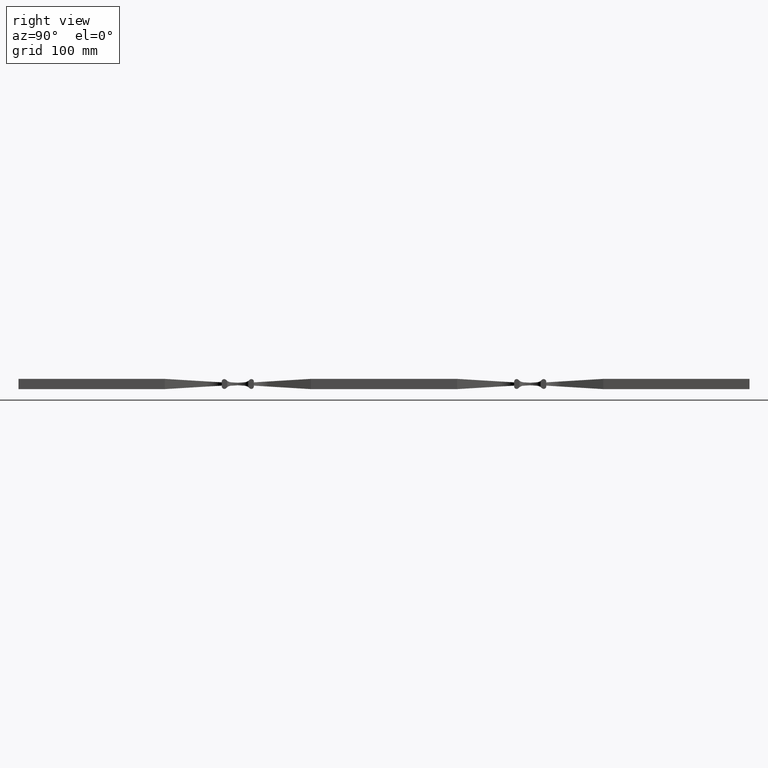
[diagram: clean part render]
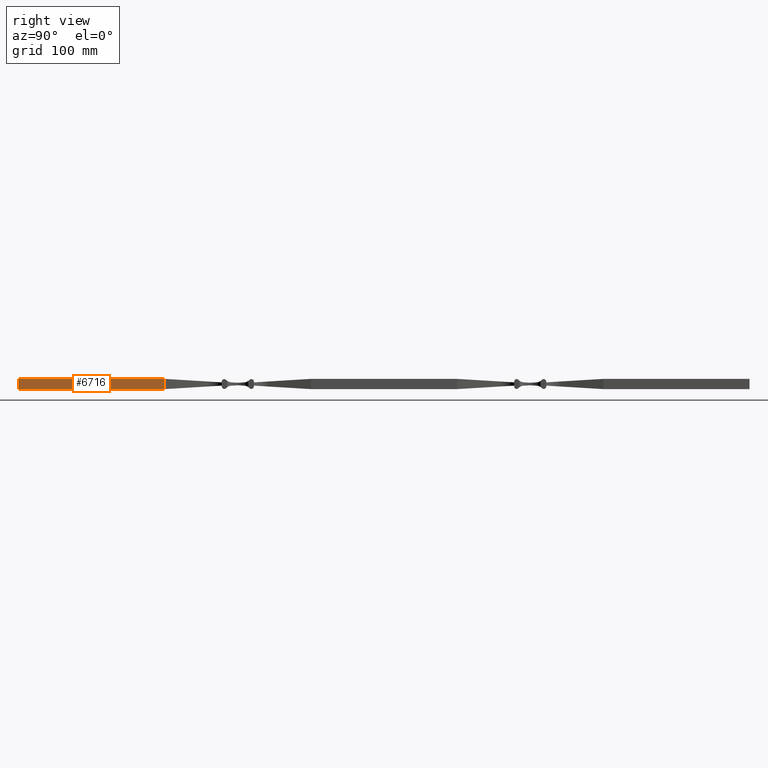
[diagram: same view with one face highlighted and labeled with its STEP entity id]
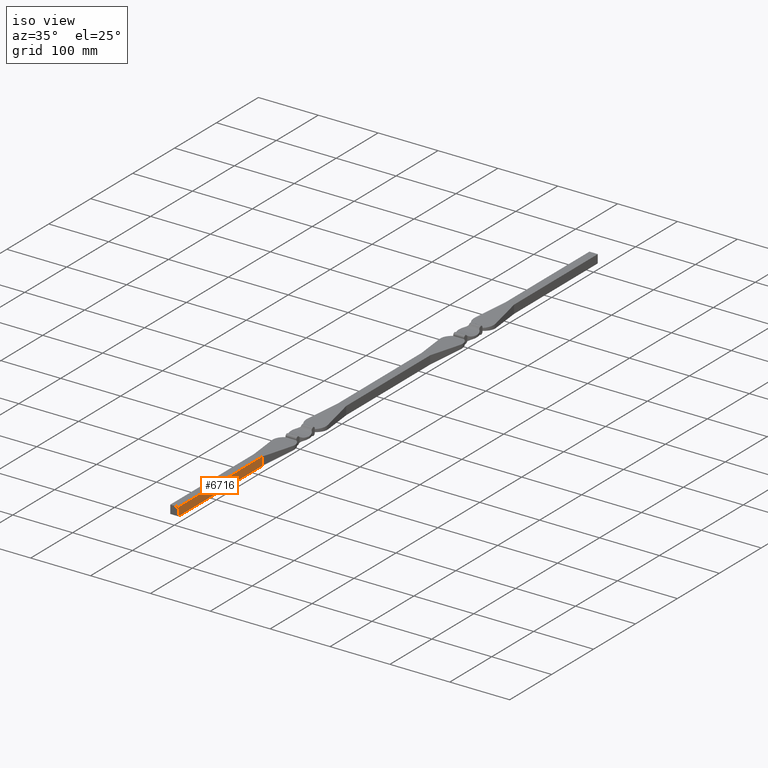
[diagram: same view with one face highlighted and labeled with its STEP entity id]
A machine part, right view. The second image highlights one B-rep face of the part: STEP entity #6716.
A second angle (iso view) of the same face is appended — the face is thin or edge-on in the first view.
In plain terms, the highlighted planar face has unit normal (-1, 0, 0).
Its self-contained STEP definition (entity closure, byte-faithful):
#29 = EDGE_CURVE ( 'NONE', #5466, #12804, #3715, .T. ) ;
#457 = ORIENTED_EDGE ( 'NONE', *, *, #6511, .T. ) ;
#549 = VECTOR ( 'NONE', #2193, 1000.000000000000000 ) ;
#1046 = CARTESIAN_POINT ( 'NONE',  ( 6.999999999999998224, -700.0000000000000000, -7.000000000000000000 ) ) ;
#1157 = ORIENTED_EDGE ( 'NONE', *, *, #11072, .F. ) ;
#1496 = LINE ( 'NONE', #9350, #13698 ) ;
#1894 = ORIENTED_EDGE ( 'NONE', *, *, #11311, .F. ) ;
#2193 = DIRECTION ( 'NONE',  ( -1.239088197126290817E-16, -0.000000000000000000, -1.000000000000000000 ) ) ;
#2928 = DIRECTION ( 'NONE',  ( -1.239088197126290817E-16, 0.000000000000000000, -1.000000000000000000 ) ) ;
#3122 = DIRECTION ( 'NONE',  ( -0.000000000000000000, 1.000000000000000000, -0.000000000000000000 ) ) ;
#3715 = LINE ( 'NONE', #1046, #549 ) ;
#3747 = CARTESIAN_POINT ( 'NONE',  ( 7.000000000000000888, -500.0000000000000000, -7.000000000000000000 ) ) ;
#4556 = EDGE_LOOP ( 'NONE', ( #457, #1894, #1157, #8575 ) ) ;
#5466 = VERTEX_POINT ( 'NONE', #10410 ) ;
#6013 = CARTESIAN_POINT ( 'NONE',  ( 6.999999999999998224, -1019.798989873223150, -7.000000000000000000 ) ) ;
#6280 = LINE ( 'NONE', #6013, #8298 ) ;
#6511 = EDGE_CURVE ( 'NONE', #12804, #11902, #6280, .T. ) ;
#6716 = ADVANCED_FACE ( 'NONE', ( #7605 ), #12884, .F. ) ;
#7052 = DIRECTION ( 'NONE',  ( -0.000000000000000000, 1.000000000000000000, -0.000000000000000000 ) ) ;
#7576 = CARTESIAN_POINT ( 'NONE',  ( 6.999999999999998224, -1019.798989873223150, -7.000000000000000000 ) ) ;
#7605 = FACE_OUTER_BOUND ( 'NONE', #4556, .T. ) ;
#7906 = DIRECTION ( 'NONE',  ( -1.000000000000000000, 0.000000000000000000, 1.239088197126290817E-16 ) ) ;
#8048 = CARTESIAN_POINT ( 'NONE',  ( 6.999999999999998224, -700.0000000000000000, -7.000000000000000000 ) ) ;
#8298 = VECTOR ( 'NONE', #7052, 1000.000000000000000 ) ;
#8359 = LINE ( 'NONE', #11834, #12233 ) ;
#8575 = ORIENTED_EDGE ( 'NONE', *, *, #29, .T. ) ;
#9080 = AXIS2_PLACEMENT_3D ( 'NONE', #7576, #7906, #13057 ) ;
#9350 = CARTESIAN_POINT ( 'NONE',  ( 6.999999999999998224, -500.0000000000000000, -7.000000000000000000 ) ) ;
#10410 = CARTESIAN_POINT ( 'NONE',  ( 6.999999999999999112, -700.0000000000000000, 7.000000000000000000 ) ) ;
#11072 = EDGE_CURVE ( 'NONE', #5466, #13014, #8359, .T. ) ;
#11311 = EDGE_CURVE ( 'NONE', #13014, #11902, #1496, .T. ) ;
#11834 = CARTESIAN_POINT ( 'NONE',  ( 7.000000000000000000, -1019.798989873223150, 7.000000000000000000 ) ) ;
#11902 = VERTEX_POINT ( 'NONE', #3747 ) ;
#12233 = VECTOR ( 'NONE', #3122, 1000.000000000000000 ) ;
#12804 = VERTEX_POINT ( 'NONE', #8048 ) ;
#12870 = CARTESIAN_POINT ( 'NONE',  ( 7.000000000000000888, -500.0000000000000000, 7.000000000000000000 ) ) ;
#12884 = PLANE ( 'NONE',  #9080 ) ;
#13014 = VERTEX_POINT ( 'NONE', #12870 ) ;
#13057 = DIRECTION ( 'NONE',  ( 1.239088197126290817E-16, 0.000000000000000000, 1.000000000000000000 ) ) ;
#13698 = VECTOR ( 'NONE', #2928, 1000.000000000000000 ) ;